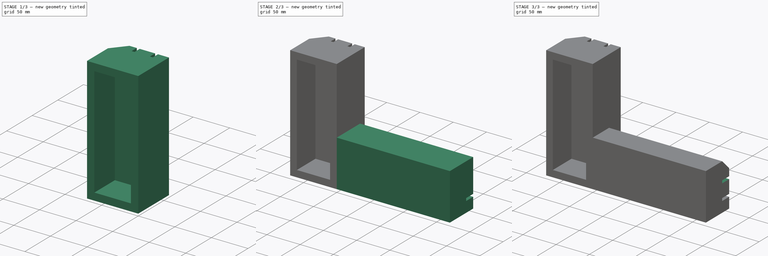
[diagram: build sequence overview — one tinted view per stage of 3, left to right]
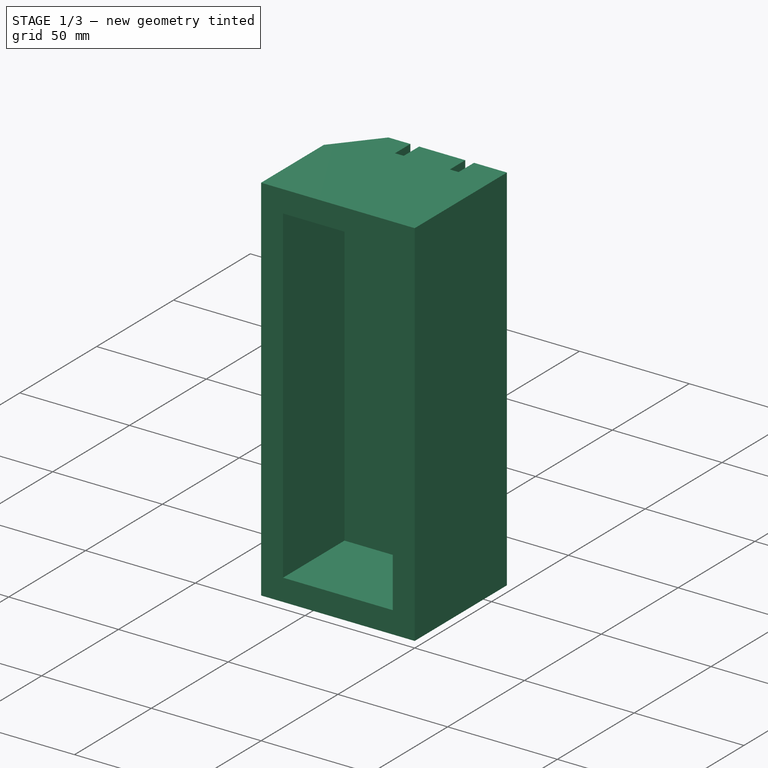
[diagram: stage 1 of 3 — iso view after this stage's code; geometry added in this stage tinted green]
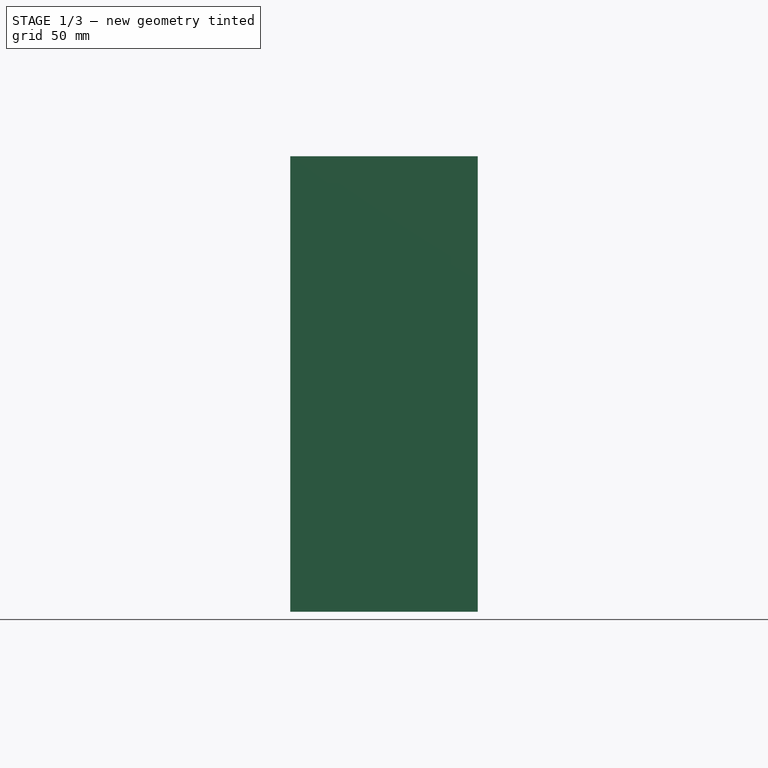
[diagram: stage 1 of 3 — front view after this stage's code; geometry added in this stage tinted green]
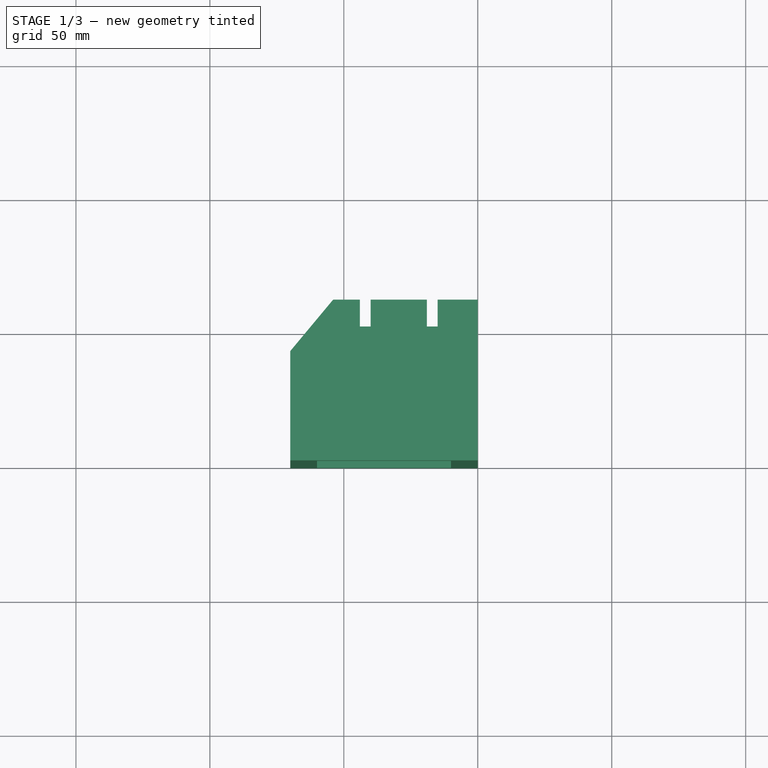
[diagram: stage 1 of 3 — top view after this stage's code; geometry added in this stage tinted green]
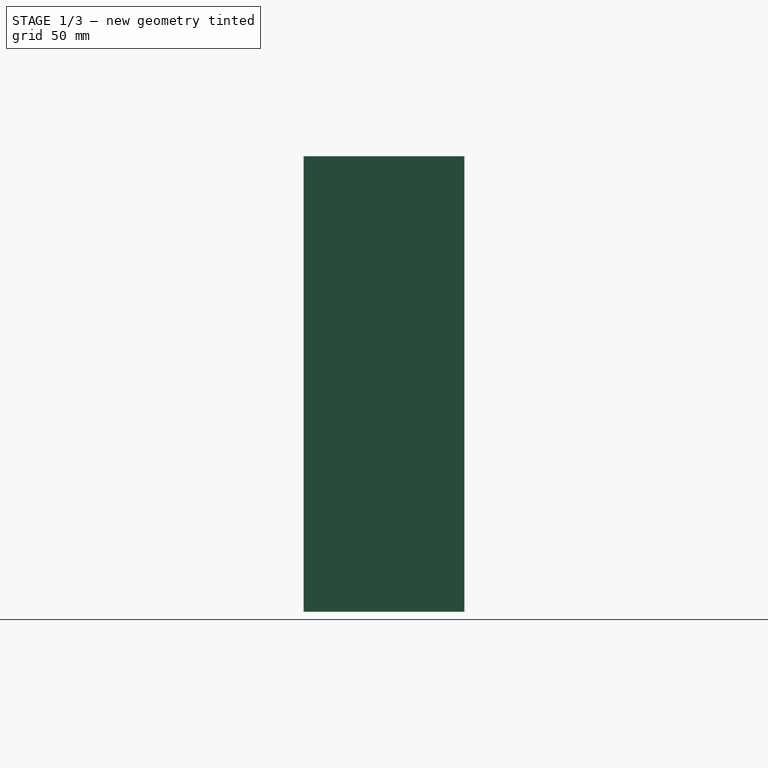
[diagram: stage 1 of 3 — right view after this stage's code; geometry added in this stage tinted green]
FCSTD DOCUMENT  (FreeCAD 0.17R13528 (Git))
Label: platform
License: All rights reserved
LicenseURL: http://en.wikipedia.org/wiki/All_rights_reserved
objects: Drawing::FeatureViewPart×6, Sketcher::SketchObject×3, PartDesign::Pocket×2, PartDesign::Body×2, Part::Box×1, PartDesign::FeatureBase×1, PartDesign::LinearPattern×1, PartDesign::Chamfer×1, PartDesign::Pad×1, Drawing::FeaturePage×1
note: 15 computed .brp shape members not serialized (recipe doc carries the construction recipe); baked Part::Feature solids carry a one-line shape summary decoded from their .brp

FEATURE [PartDesign::Body] Body
  BaseFeature = -> Box
  Group = -> [BaseFeature,Sketch,Pocket,LinearPattern,Chamfer]
  Origin = -> Origin
  Tip = -> Chamfer
FEATURE [Sketcher::SketchObject] Sketch001
  MapMode = 5
  Support = -> [XY_Plane001]
  sketch-geometry (13):
    g0: LineSegment StartX=0 StartY=0 StartZ=0 EndX=0 EndY=60 EndZ=0
    g1: LineSegment StartX=0 StartY=0 StartZ=0 EndX=-70 EndY=0 EndZ=0
    g2: LineSegment StartX=0 StartY=60 StartZ=0 EndX=-15 EndY=60 EndZ=0
    g3: LineSegment StartX=-15 StartY=60 StartZ=0 EndX=-15 EndY=50 EndZ=0
    g4: LineSegment StartX=-15 StartY=50 StartZ=0 EndX=-19 EndY=50 EndZ=0
    g5: LineSegment StartX=-19 StartY=60 StartZ=0 EndX=-19 EndY=50 EndZ=0
    g6: LineSegment StartX=-19 StartY=60 StartZ=0 EndX=-40 EndY=60 EndZ=0
    g7: LineSegment StartX=-40 StartY=60 StartZ=0 EndX=-40 EndY=50 EndZ=0
    g8: LineSegment StartX=-40 StartY=50 StartZ=0 EndX=-44 EndY=50 EndZ=0
    g9: LineSegment StartX=-44 StartY=50 StartZ=0 EndX=-44 EndY=60 EndZ=0
    g10: LineSegment StartX=-44 StartY=60 StartZ=0 EndX=-54 EndY=60 EndZ=0
    g11: LineSegment StartX=-54 StartY=60 StartZ=0 EndX=-70 EndY=40.7906 EndZ=0
    g12: LineSegment StartX=-70 StartY=40.7906 StartZ=0 EndX=-70 EndY=0 EndZ=0
  constraints (38):
    c: Coincident(g0,g-1)
    c: Vertical(g0)
    c: DistanceY(g0,g0) = 60
    c: Horizontal(g1)
    c: DistanceX(g1,g1) = 70
    c: Coincident(g1,g-1)
    c: Coincident(g2,g0)
    c: Horizontal(g2)
    c: DistanceX(g2,g2) = 15
    c: Coincident(g3,g2)
    c: Vertical(g3)
    c: Horizontal(g4)
    c: Coincident(g5,g4)
    c: Vertical(g5)
    c: Horizontal(g6)
    c: Coincident(g7,g6)
    c: Coincident(g8,g7)
    c: Coincident(g9,g8)
    c: Vertical(g9)
    c: Coincident(g10,g9)
    c: Horizontal(g10)
    c: Coincident(g12,g1)
    c: Vertical(g12)
    c: DistanceY(g3,g3) = 10
    c: Equal(g3,g5)
    c: Equal(g5,g7)
    c: Equal(g5,g9)
    c: Coincident(g10,g11)
    c: Coincident(g5,g6)
    c: Coincident(g11,g12)
    c: Horizontal(g8)
    c: Coincident(g3,g4)
    c: DistanceX(g4,g4) = 4
    c: Equal(g4,g8)
    c: DistanceX(g6,g6) = 21
    c: Vertical(g7)
    c: DistanceX(g10,g10) = 10
    c: Distance(g11) = 25
FEATURE [PartDesign::Pad] Pad
  Length = 170
  Length2 = 100
  Profile = -> Sketch001
  Type = 0
FEATURE [Sketcher::SketchObject] Sketch002
  ExternalGeometry = -> [Pad]
  MapMode = 5
  Placement = pos=(0,0,0) rot=(1,0,0;1.5708rad)
  Support = -> [Pad]
  sketch-geometry (8):
    g0: LineSegment StartX=-60 StartY=160 StartZ=0 EndX=-10 EndY=160 EndZ=0
    g1: LineSegment StartX=-10 StartY=160 StartZ=0 EndX=-10 EndY=10 EndZ=0
    g2: LineSegment StartX=-10 StartY=10 StartZ=0 EndX=-60 EndY=10 EndZ=0
    g3: LineSegment StartX=-60 StartY=10 StartZ=0 EndX=-60 EndY=160 EndZ=0
    g4: LineSegment [constr] StartX=0 StartY=0 StartZ=0 EndX=0 EndY=10 EndZ=0
    g5: LineSegment [constr] StartX=0 StartY=10 StartZ=0 EndX=-10 EndY=10 EndZ=0
    g6: LineSegment [constr] StartX=-70 StartY=170 StartZ=0 EndX=-60 EndY=170 EndZ=0
    g7: LineSegment [constr] StartX=-60 StartY=170 StartZ=0 EndX=-60 EndY=160 EndZ=0
  constraints (22):
    c: Coincident(g0,g1)
    c: Coincident(g1,g2)
    c: Coincident(g2,g3)
    c: Coincident(g3,g0)
    c: Horizontal(g0)
    c: Horizontal(g2)
    c: Vertical(g1)
    c: Vertical(g3)
    c: Coincident(g4,g-1)
    c: PointOnObject(g4,g-2)
    c: Coincident(g5,g4)
    c: Coincident(g5,g1)
    c: Horizontal(g5)
    c: DistanceX(g5,g5) = 10
    c: DistanceY(g4,g4) = 10
    c: Coincident(g6,g-3)
    c: Horizontal(g6)
    c: Coincident(g7,g6)
    c: Coincident(g7,g0)
    c: Vertical(g7)
    c: DistanceY(g7,g7) = 10
    c: DistanceX(g6,g6) = 10
FEATURE [PartDesign::Pocket] Pocket001
  BaseFeature = -> Pad
  Length = 40
  Length2 = 100
  Profile = -> Sketch002
  Type = 0
FEATURE [PartDesign::Body] Body001
  Group = -> [Sketch001,Pad,Sketch002,Pocket001]
  Origin = -> Origin001
  Tip = -> Pocket001
FEATURE [Drawing::FeatureViewPart] Ortho  label="Ortho_0_0"
  Direction = (1,0,0)
  HiddenWidth = 0.15
  LineWidth = 0.35
  Rotation = -90
  Scale = 0.5
  ShowHiddenLines = false
  ShowSmoothLines = false
  Source = -> Body001
  Tolerance = 0.05
  ViewResult = <g id="Ortho_0_0"\n   transform="rotate(-90,97.5,127.333) translate(97.5,127.333) scale(0.5,0.5)"\n  >\n<g   fill="none"\n   stroke="rgb(0, 0, 0)"\n   stroke-linecap="butt"\n   stroke-linejoin="miter"\n   stroke-width="0.700000"\n   transform="scale(1,-1)"\n  >\n<path id= "1" d=" M 0 0 L 170 0 " />\n<path id= "2" d=" M 0 -60 L 170 -60 " />\n<path id= "3" d=" M 0 0 L 0 -60 " />\n<path id= "4" d=" M 170 0 L 170 -60 " />\n</g>\n</g>
  Visible = true
  X = 97.5
  Y = 127.333
FEATURE [Drawing::FeatureViewPart] Ortho004  label="Ortho_1_-1"
  Direction = (0.57735,0.57735,-0.57735)
  HiddenWidth = 0.15
  LineWidth = 0.35
  Rotation = 60
  Scale = 0.5
  ShowHiddenLines = false
  ShowSmoothLines = false
  Source = -> Body001
  Tolerance = 0.05
  ViewResult = <g id="Ortho_1_-1"\n   transform="rotate(60,140.037,209.827) translate(140.037,209.827) scale(0.5,0.5)"\n  >\n<g   fill="none"\n   stroke="rgb(0, 0, 0)"\n   stroke-linecap="butt"\n   stroke-linejoin="miter"\n   stroke-width="0.700000"\n   transform="scale(1,-1)"\n  >\n<path id= "1" d=" M 0 0 L -120.208 69.4022 " />\n<path id= "2" d=" M 0 48.9898 L -120.208 118.392 " />\n<path id= "3" d=" M 0 0 L 0 48.9898 " />\n<path id= "4" d=" M -120.208 69.4022 L -120.208 118.392 " />\n<path id= "5" d=" M 0 0 L 49.4975 28.5774 " />\n<path id= "6" d=" M 10.6066 55.1135 L -109.602 124.516 " />\n<path id= "7" d=" M 0 48.9898 L 10.6066 55.1135 " />\n<path id= "8" d=" M -120.208 118.392 L -109.602 124.516 " />\n<path id= "9" d=" M 10.6066 55.1135 L 10.6066 46.9486 " />\n<path id= "10" d=" M 10.6066 46.9486 L 13.435 48.5815 " />\n<path id= "11" d=" M 13.435 56.7465 L 13.435 48.5815 " />\n<path id= "12" d=" M 13.435 56.7465 L 28.2843 65.3197 " />\n<path id= "13" d=" M 28.2843 65.3197 L 28.2843 57.1548 " />\n<path id= "14" d=" M 28.2843 57.1548 L 31.1127 58.7878 " />\n<path id= "15" d=" M 31.1127 58.7878 L 31.1127 66.9527 " />\n<path id= "16" d=" M 31.1127 66.9527 L 38.1838 71.0352 " />\n<path id= "17" d=" M 38.1838 71.0352 L 49.4975 61.8828 " />\n<path id= "18" d=" M 49.4975 61.8828 L 49.4975 28.5774 " />\n<path id= "19" d=" M -106.773 126.149 L -106.773 122.883 " />\n<path id= "20" d=" M -106.773 126.149 L -91.9239 134.722 " />\n<path id= "21" d=" M -89.0955 133.089 L -89.0955 136.355 " />\n<path id= "22" d=" M -89.0955 136.355 L -82.0244 140.437 " />\n<path id= "23" d=" M 13.435 48.5815 L 10.6066 50.2145 " />\n<path id= "24" d=" M 13.435 56.7465 L -106.773 126.149 " />\n<path id= "25" d=" M 28.2843 65.3197 L -91.9239 134.722 " />\n<path id= "26" d=" M 31.1127 58.7878 L 28.2843 60.4207 " />\n<path id= "27" d=" M 31.1127 66.9527 L -89.0955 136.355 " />\n<path id= "28" d=" M 38.1838 71.0352 L -82.0244 140.437 " />\n</g>\n</g>
  Visible = true
  X = 140.037
  Y = 209.827
FEATURE [Drawing::FeatureViewPart] Ortho005  label="Ortho_-1_0"
  Direction = (0,-1,0)
  HiddenWidth = 0.15
  LineWidth = 0.35
  Rotation = 90
  Scale = 0.5
  ShowHiddenLines = false
  ShowSmoothLines = false
  Source = -> Body001
  Tolerance = 0.05
  ViewResult = <g id="Ortho_-1_0"\n   transform="rotate(90,76.25,127.333) translate(76.25,127.333) scale(0.5,0.5)"\n  >\n<g   fill="none"\n   stroke="rgb(0, 0, 0)"\n   stroke-linecap="butt"\n   stroke-linejoin="miter"\n   stroke-width="0.700000"\n   transform="scale(1,-1)"\n  >\n<path id= "1" d=" M 0 0 L -170 0 " />\n<path id= "2" d=" M 0 0 L 0 -70 " />\n<path id= "3" d=" M -170 0 L -170 -70 " />\n<path id= "4" d=" M 0 -70 L -170 -70 " />\n<path id= "5" d=" M -10 -60 L -160 -60 " />\n<path id= "6" d=" M -10 -10 L -10 -60 " />\n<path id= "7" d=" M -160 -10 L -10 -10 " />\n<path id= "8" d=" M -160 -60 L -160 -10 " />\n</g>\n</g>
  Visible = true
  X = 76.25
  Y = 127.333
FEATURE [Drawing::FeatureViewPart] Ortho006  label="Ortho_0_-1"
  Direction = (0,0,-1)
  HiddenWidth = 0.15
  LineWidth = 0.35
  Rotation = 90
  Scale = 0.5
  ShowHiddenLines = false
  ShowSmoothLines = false
  Source = -> Body001
  Tolerance = 0.05
  ViewResult = <g id="Ortho_0_-1"\n   transform="rotate(90,97.5,159.667) translate(97.5,159.667) scale(0.5,0.5)"\n  >\n<g   fill="none"\n   stroke="rgb(0, 0, 0)"\n   stroke-linecap="butt"\n   stroke-linejoin="miter"\n   stroke-width="0.700000"\n   transform="scale(1,-1)"\n  >\n<path id= "1" d=" M 0 0 L 0 60 " />\n<path id= "2" d=" M 0 0 L 70 0 " />\n<path id= "3" d=" M 0 60 L 15 60 " />\n<path id= "4" d=" M 15 60 L 15 50 " />\n<path id= "5" d=" M 15 50 L 19 50 " />\n<path id= "6" d=" M 19 60 L 19 50 " />\n<path id= "7" d=" M 19 60 L 40 60 " />\n<path id= "8" d=" M 40 60 L 40 50 " />\n<path id= "9" d=" M 40 50 L 44 50 " />\n<path id= "10" d=" M 44 50 L 44 60 " />\n<path id= "11" d=" M 44 60 L 54 60 " />\n<path id= "12" d=" M 54 60 L 70 40.7906 " />\n<path id= "13" d=" M 70 40.7906 L 70 0 " />\n</g>\n</g>
  Visible = true
  X = 97.5
  Y = 159.667
FEATURE [Drawing::FeatureViewPart] Ortho007  label="Ortho_-1_-1"
  Direction = (0.57735,-0.57735,-0.57735)
  HiddenWidth = 0.15
  LineWidth = 0.35
  Rotation = 120
  Scale = 0.5
  ShowHiddenLines = false
  ShowSmoothLines = false
  Source = -> Body001
  Tolerance = 0.05
  ViewResult = <g id="Ortho_-1_-1"\n   transform="rotate(120,62.2855,199.62) translate(62.2855,199.62) scale(0.5,0.5)"\n  >\n<g   fill="none"\n   stroke="rgb(0, 0, 0)"\n   stroke-linecap="butt"\n   stroke-linejoin="miter"\n   stroke-width="0.700000"\n   transform="scale(1,-1)"\n  >\n<path id= "1" d=" M 0 0 L -120.208 -69.4022 " />\n<path id= "2" d=" M 0 48.9898 L -120.208 -20.4124 " />\n<path id= "3" d=" M 0 0 L 0 48.9898 " />\n<path id= "4" d=" M -120.208 -69.4022 L -120.208 -20.4124 " />\n<path id= "5" d=" M 0 0 L 49.4975 -28.5774 " />\n<path id= "6" d=" M -120.208 -69.4022 L -70.7107 -97.9796 " />\n<path id= "7" d=" M 49.4975 -28.5774 L -70.7107 -97.9796 " />\n<path id= "8" d=" M 35.3553 -28.5774 L -70.7107 -89.8146 " />\n<path id= "9" d=" M 0 -8.16497 L 35.3553 -28.5774 " />\n<path id= "10" d=" M -106.066 -69.4022 L 0 -8.16497 " />\n<path id= "11" d=" M -70.7107 -89.8146 L -106.066 -69.4022 " />\n<path id= "12" d=" M 0 48.9898 L 10.6066 42.8661 " />\n<path id= "13" d=" M 10.6066 42.8661 L 10.6066 34.7011 " />\n<path id= "14" d=" M 10.6066 34.7011 L 13.435 33.0681 " />\n<path id= "15" d=" M 13.435 41.2331 L 13.435 33.0681 " />\n<path id= "16" d=" M 13.435 41.2331 L 28.2843 32.6599 " />\n<path id= "17" d=" M 28.2843 32.6599 L 28.2843 24.4949 " />\n<path id= "18" d=" M 28.2843 24.4949 L 31.1127 22.8619 " />\n<path id= "19" d=" M 31.1127 22.8619 L 31.1127 31.0269 " />\n<path id= "20" d=" M 31.1127 31.0269 L 38.1838 26.9444 " />\n<path id= "21" d=" M 38.1838 26.9444 L 49.4975 4.72803 " />\n<path id= "22" d=" M 49.4975 4.72803 L 49.4975 -28.5774 " />\n<path id= "23" d=" M -70.7107 -89.8146 L -70.7107 -57.1548 " />\n<path id= "24" d=" M 7.07107 -12.2474 L -70.7107 -57.1548 " />\n<path id= "25" d=" M -70.7107 -57.1548 L -77.7817 -53.0723 " />\n<path id= "26" d=" M 13.435 41.2331 L 10.6066 39.6001 " />\n<path id= "27" d=" M 31.1127 31.0269 L 28.2843 29.3939 " />\n</g>\n</g>
  Visible = true
  X = 62.2855
  Y = 199.62
FEATURE [Drawing::FeatureViewPart] Ortho008  label="Ortho_1_0"
  Direction = (0,1,0)
  HiddenWidth = 0.15
  LineWidth = 0.35
  Rotation = -90
  Scale = 0.5
  ShowHiddenLines = false
  ShowSmoothLines = false
  Source = -> Body001
  Tolerance = 0.05
  ViewResult = <g id="Ortho_1_0"\n   transform="rotate(-90,143.75,127.333) translate(143.75,127.333) scale(0.5,0.5)"\n  >\n<g   fill="none"\n   stroke="rgb(0, 0, 0)"\n   stroke-linecap="butt"\n   stroke-linejoin="miter"\n   stroke-width="0.700000"\n   transform="scale(1,-1)"\n  >\n<path id= "1" d=" M 0 0 L 170 0 " />\n<path id= "2" d=" M 0 -15 L 170 -15 " />\n<path id= "3" d=" M 0 0 L 0 -15 " />\n<path id= "4" d=" M 170 0 L 170 -15 " />\n<path id= "5" d=" M 0 -15 L 0 -19 " />\n<path id= "6" d=" M 0 -19 L 0 -40 " />\n<path id= "7" d=" M 0 -40 L 0 -44 " />\n<path id= "8" d=" M 0 -44 L 0 -54 " />\n<path id= "9" d=" M 0 -54 L 0 -70 " />\n<path id= "10" d=" M 170 -15 L 170 -19 " />\n<path id= "11" d=" M 170 -19 L 170 -40 " />\n<path id= "12" d=" M 170 -40 L 170 -44 " />\n<path id= "13" d=" M 170 -44 L 170 -54 " />\n<path id= "14" d=" M 170 -54 L 170 -70 " />\n<path id= "15" d=" M 0 -70 L 170 -70 " />\n<path id= "16" d=" M 0 -19 L 170 -19 " />\n<path id= "17" d=" M 0 -40 L 170 -40 " />\n<path id= "18" d=" M 0 -44 L 170 -44 " />\n<path id= "19" d=" M 0 -54 L 170 -54 " />\n</g>\n</g>
  Visible = true
  X = 143.75
  Y = 127.333
FEATURE [Drawing::FeaturePage] Page
  EditableTexts = Polyakov Konstantin | Platform of NightLight | FreeCAD DRAWING | A4 | X / Y | SCALE | PN | DN | DD/MM/YYYY | REV A
  Group = -> [Ortho,Ortho004,Ortho005,Ortho006,Ortho007,Ortho008]
  Template = <path>//share/freecad/Mod/Drawing/Templates/A4_Portrait_ISO7200.svg
note: 1 file-system path scrubbed to <path> (originals preserved in the JSON sidecar)
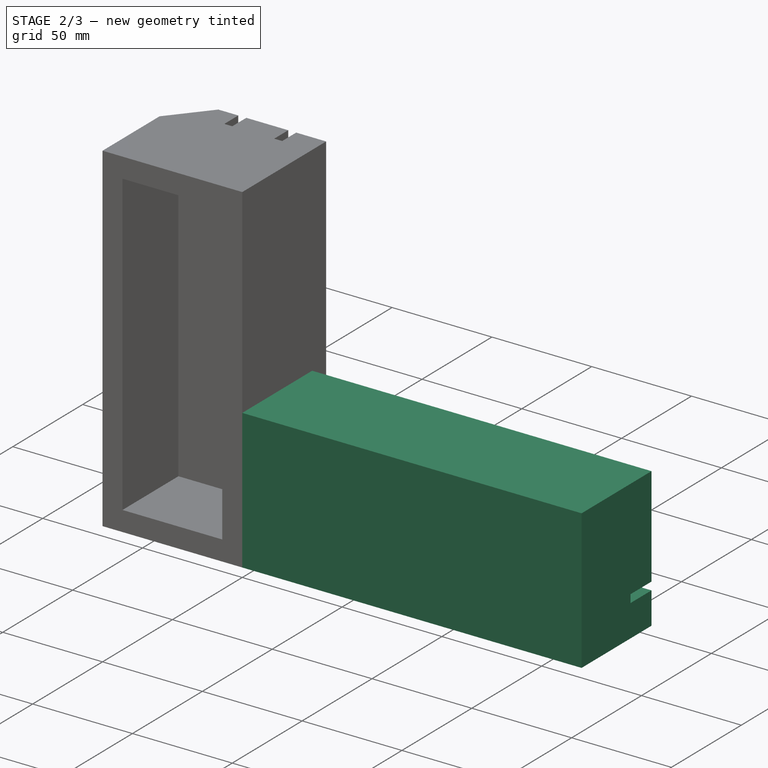
[diagram: stage 2 of 3 — iso view after this stage's code; geometry added in this stage tinted green]
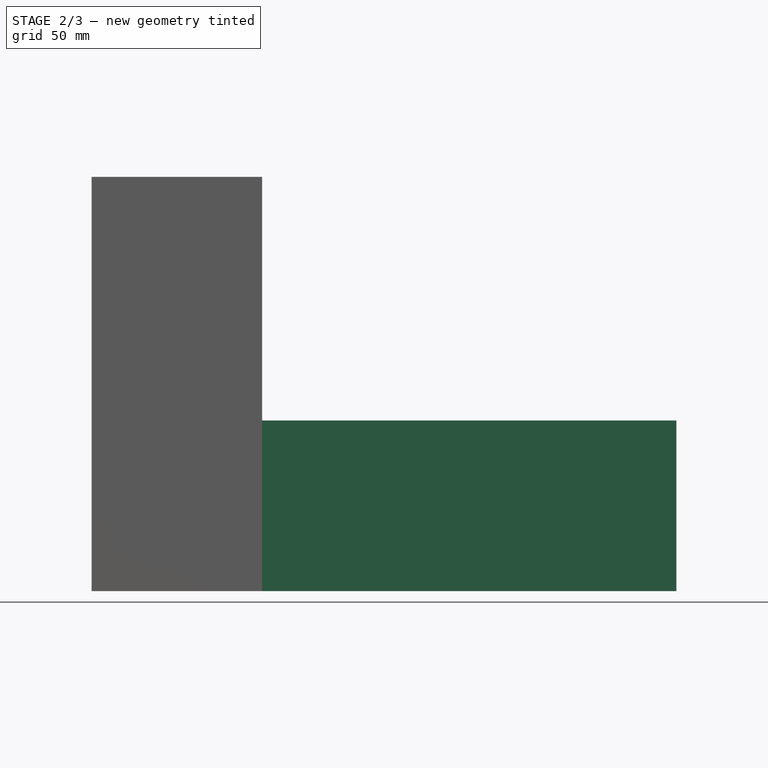
[diagram: stage 2 of 3 — front view after this stage's code; geometry added in this stage tinted green]
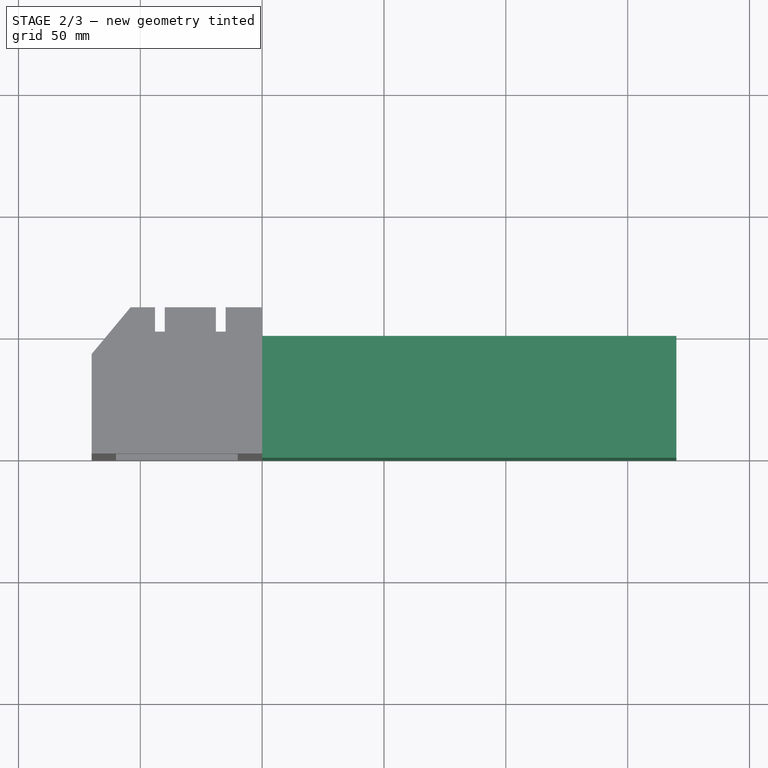
[diagram: stage 2 of 3 — top view after this stage's code; geometry added in this stage tinted green]
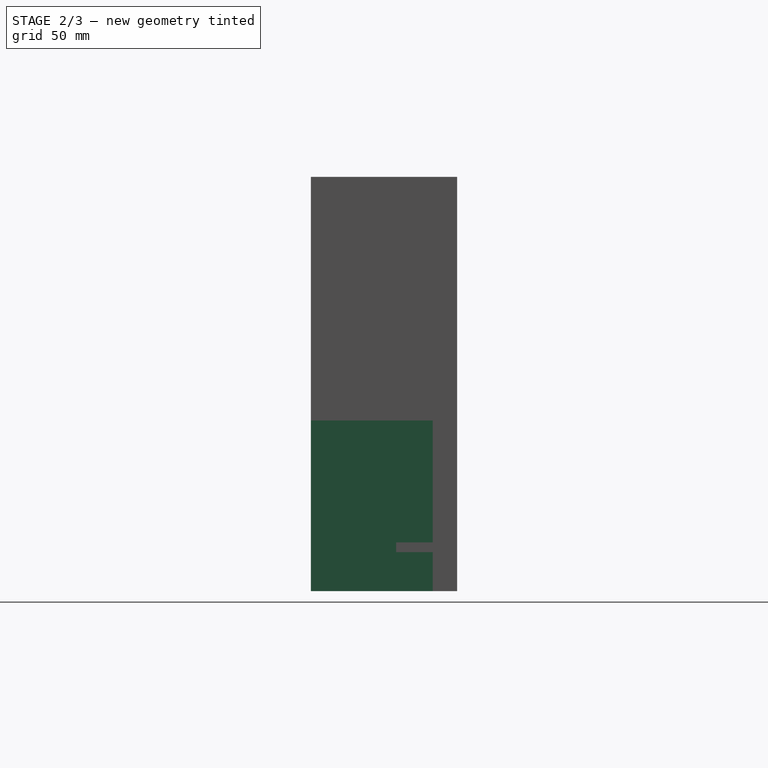
[diagram: stage 2 of 3 — right view after this stage's code; geometry added in this stage tinted green]
FEATURE [Part::Box] Box  label="Куб"
  AttacherType = Attacher::AttachEngine3D
  Height = 70
  Length = 170
  Width = 50
FEATURE [Sketcher::SketchObject] Sketch
  ExternalGeometry = -> [Box]
  MapMode = 5
  Placement = pos=(0,50,0) rot=(0,0.707107,0.707107;3.14159rad)
  Support = -> [Box]
  sketch-geometry (5):
    g0: LineSegment StartX=0 StartY=16 StartZ=0 EndX=-170 EndY=16 EndZ=0
    g1: LineSegment StartX=-170 StartY=16 StartZ=0 EndX=-170 EndY=20 EndZ=0
    g2: LineSegment StartX=-170 StartY=20 StartZ=0 EndX=0 EndY=20 EndZ=0
    g3: LineSegment StartX=0 StartY=20 StartZ=0 EndX=0 EndY=16 EndZ=0
    g4: LineSegment [constr] StartX=0 StartY=16 StartZ=0 EndX=0 EndY=0 EndZ=0
  constraints (16):
    c: PointOnObject(g0,g-2)
    c: Horizontal(g0)
    c: Coincident(g1,g0)
    c: Vertical(g1)
    c: Coincident(g2,g1)
    c: Horizontal(g2)
    c: Coincident(g3,g2)
    c: Coincident(g3,g0)
    c: Vertical(g3)
    c: DistanceY(g1,g1) = 4
    c: Equal(g1,g3)
    c: PointOnObject(g1,g-3)
    c: Coincident(g4,g0)
    c: Vertical(g4)
    c: DistanceY(g4,g4) = 16
    c: Coincident(g4,g-1)
FEATURE [PartDesign::FeatureBase] BaseFeature
  BaseFeature = -> Box
FEATURE [PartDesign::Pocket] Pocket
  BaseFeature = -> BaseFeature
  Length = 15
  Length2 = 100
  Profile = -> Sketch
  Type = 0
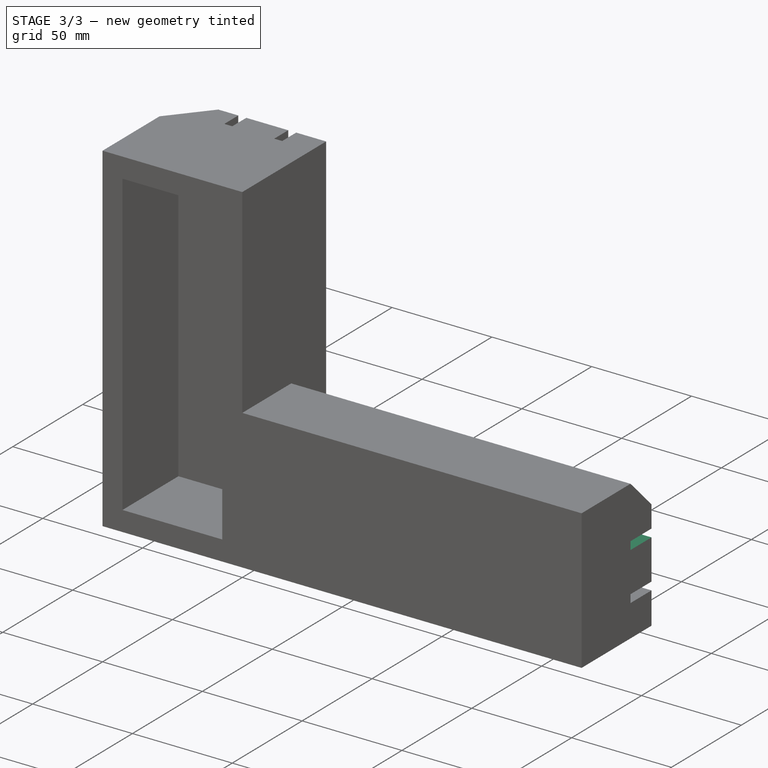
[diagram: stage 3 of 3 — iso view after this stage's code; geometry added in this stage tinted green]
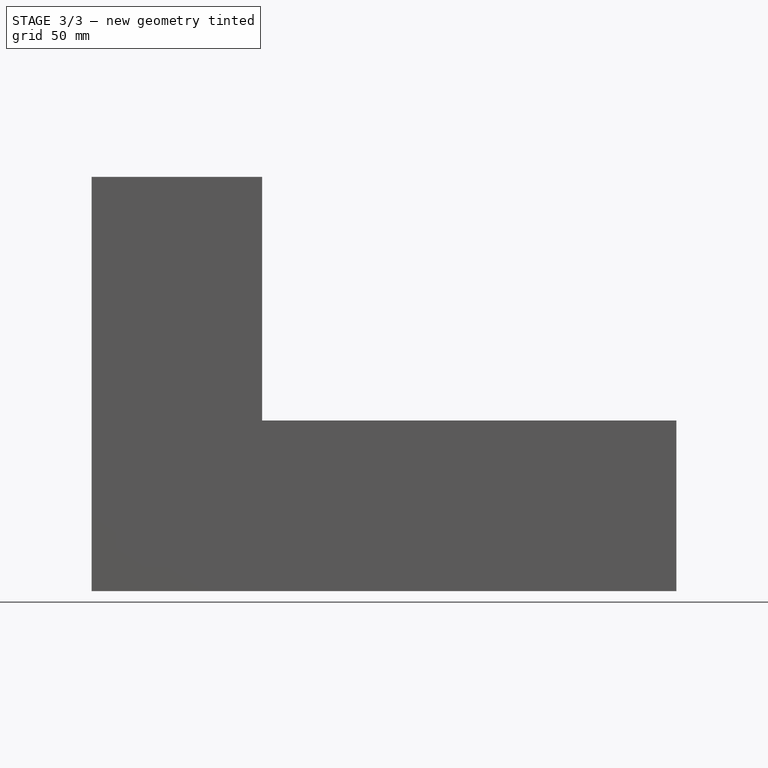
[diagram: stage 3 of 3 — front view after this stage's code; geometry added in this stage tinted green]
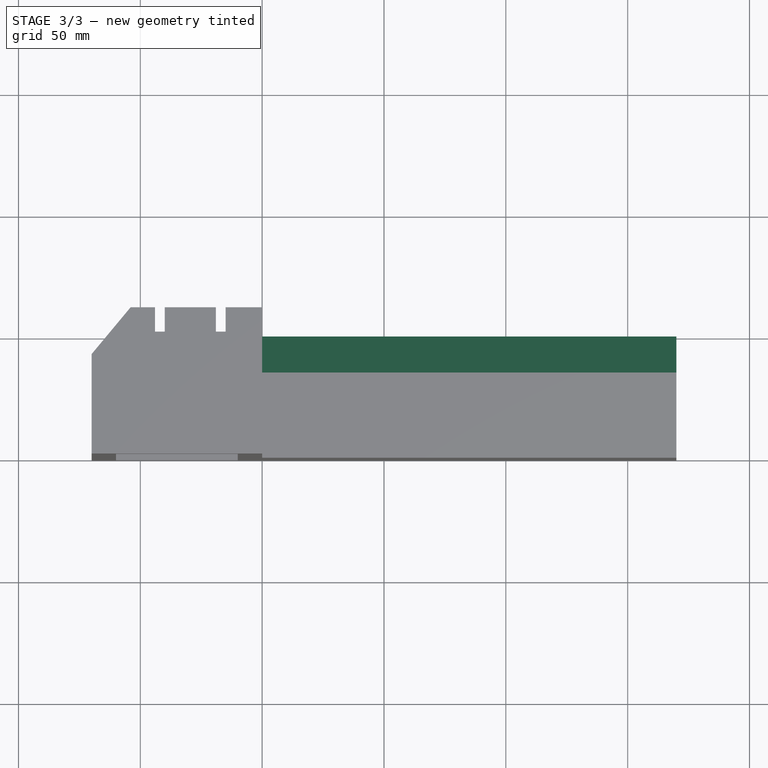
[diagram: stage 3 of 3 — top view after this stage's code; geometry added in this stage tinted green]
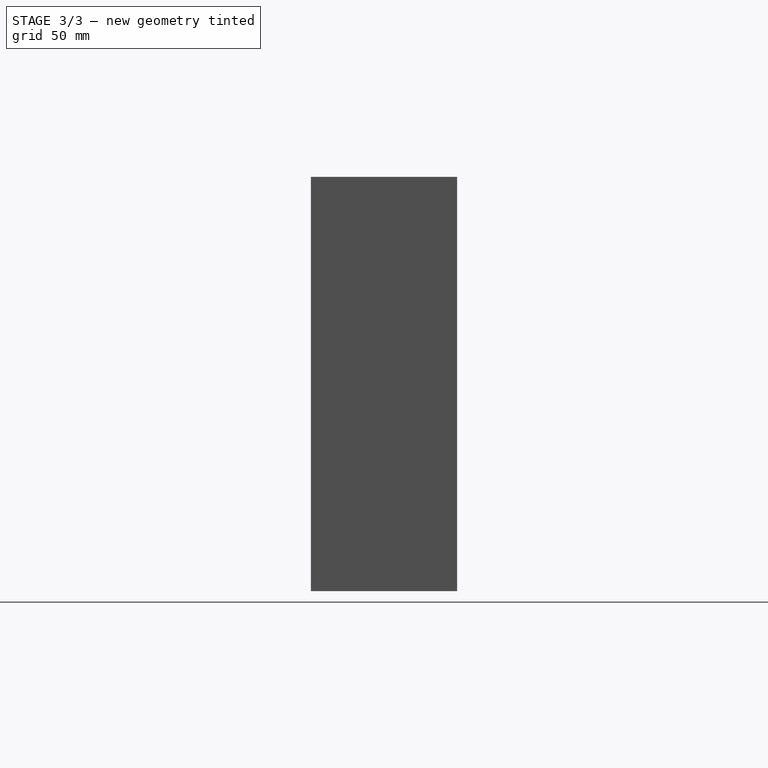
[diagram: stage 3 of 3 — right view after this stage's code; geometry added in this stage tinted green]
FEATURE [PartDesign::LinearPattern] LinearPattern
  BaseFeature = -> Pocket
  Direction = -> Sketch [V_Axis]
  Length = 24
  Occurrences = 2
  Originals = -> [Pocket]
FEATURE [PartDesign::Chamfer] Chamfer
  Base = -> LinearPattern [Edge14]
  BaseFeature = -> LinearPattern
  Size = 15
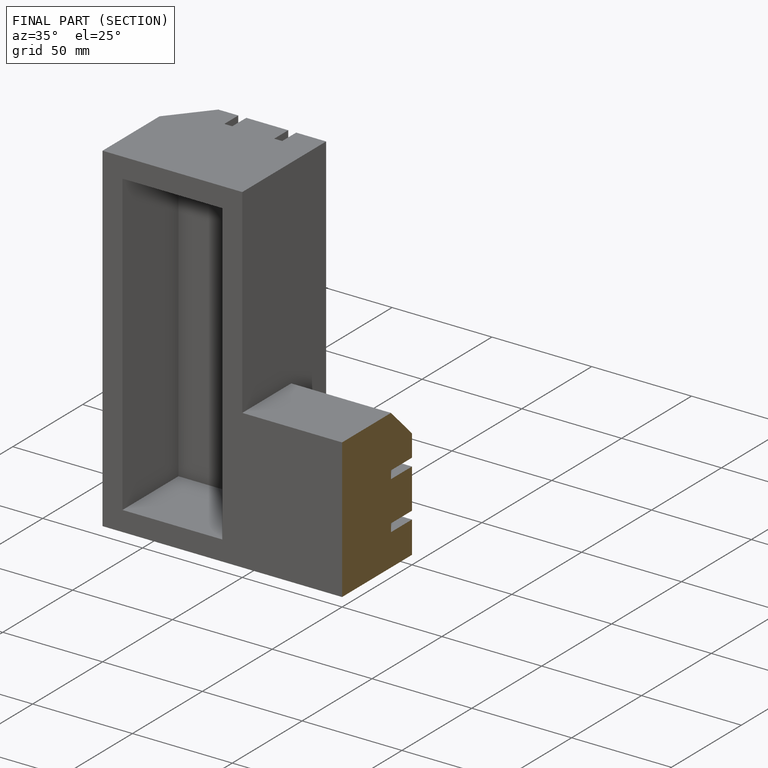
[diagram: finished part — half-section view (interior)]
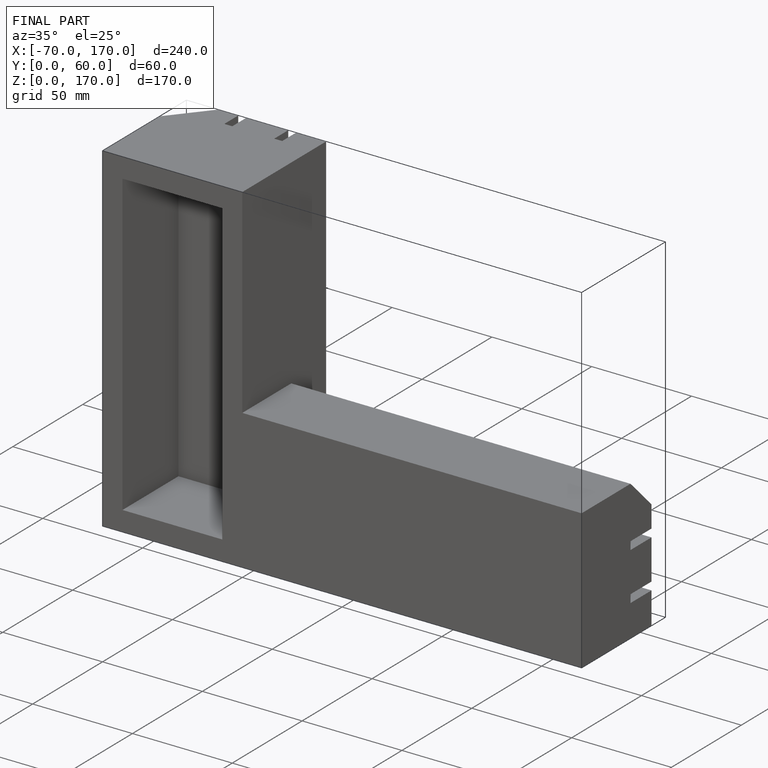
[diagram: finished part — iso view with bounding-box wireframe]
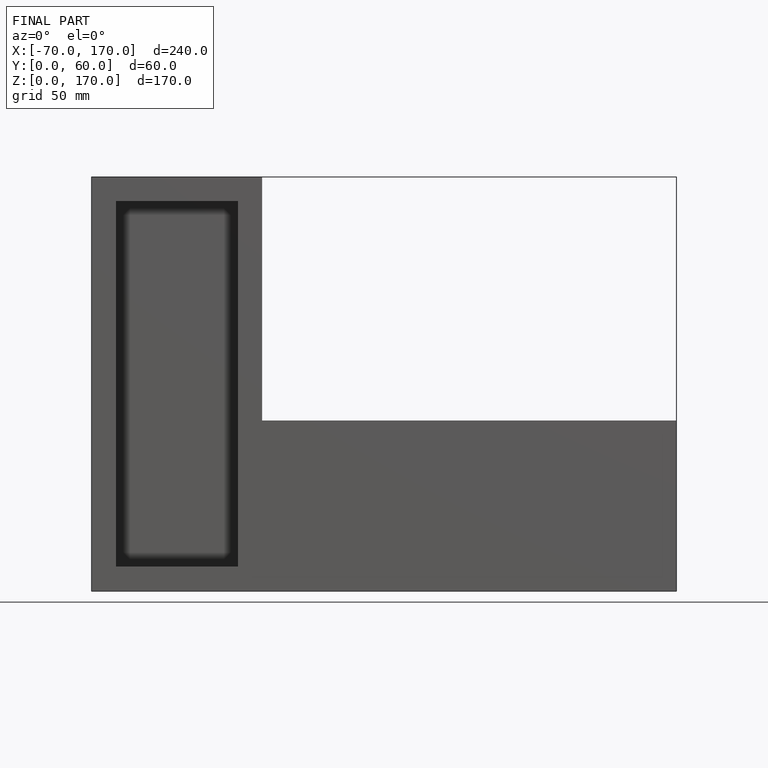
[diagram: finished part — front view with bounding-box wireframe]
